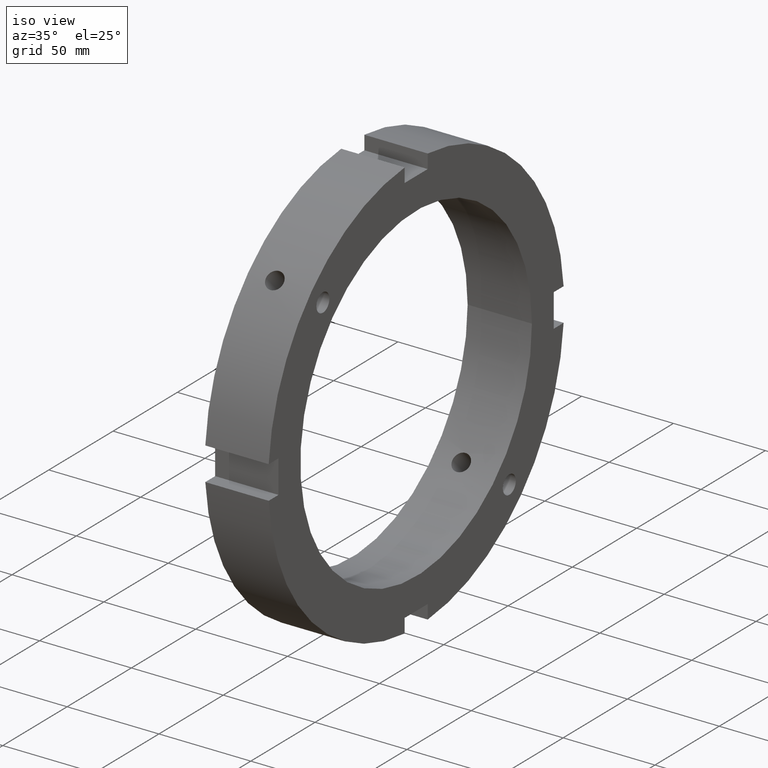
[diagram: clean part render]
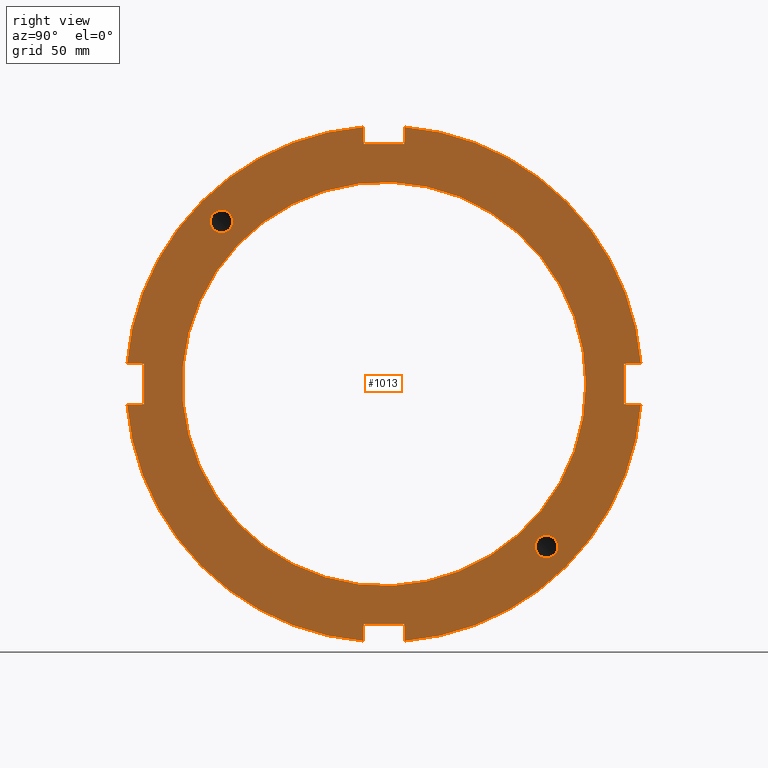
[diagram: tour spotlight — one face highlighted and labeled with its STEP entity id]
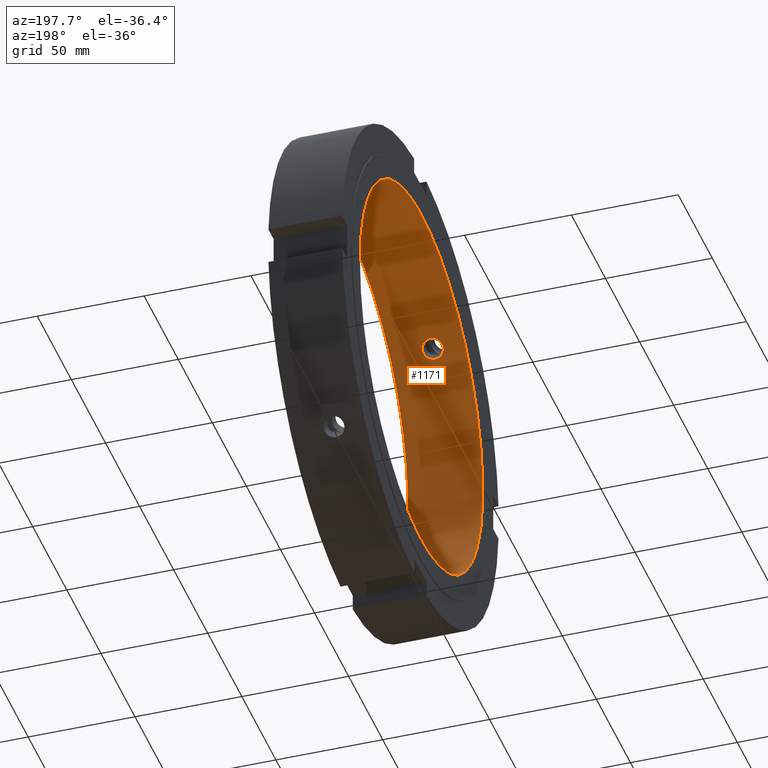
[diagram: tour spotlight — one face highlighted and labeled with its STEP entity id]
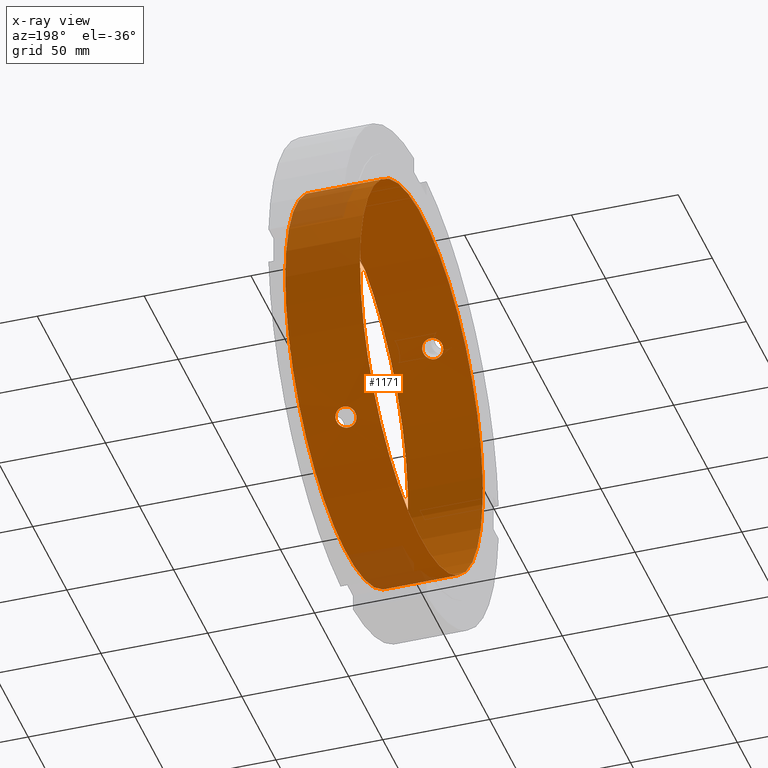
[diagram: x-ray of the same camera — body ghosted, this tour face saturated]
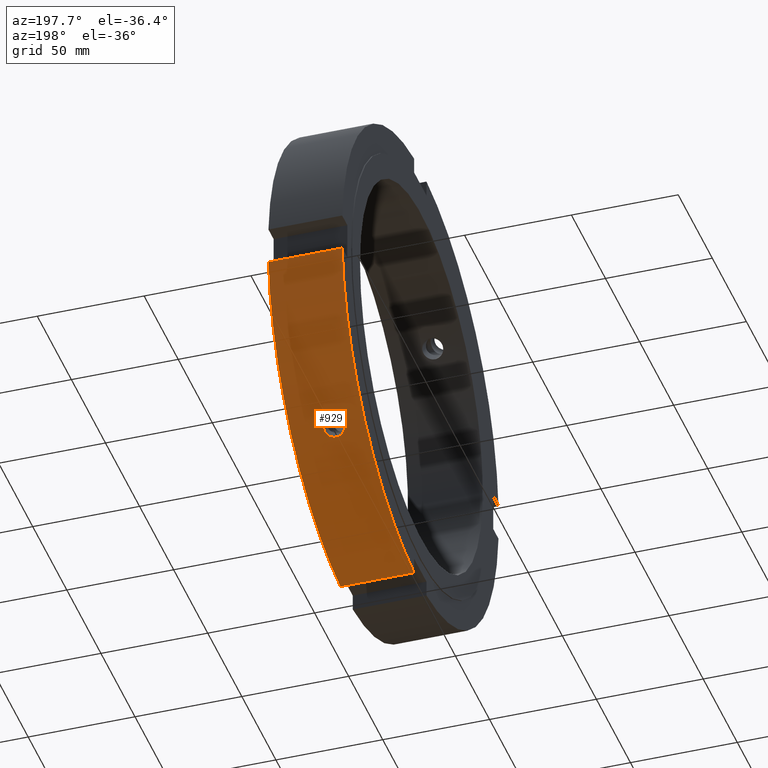
[diagram: tour spotlight — one face highlighted and labeled with its STEP entity id]
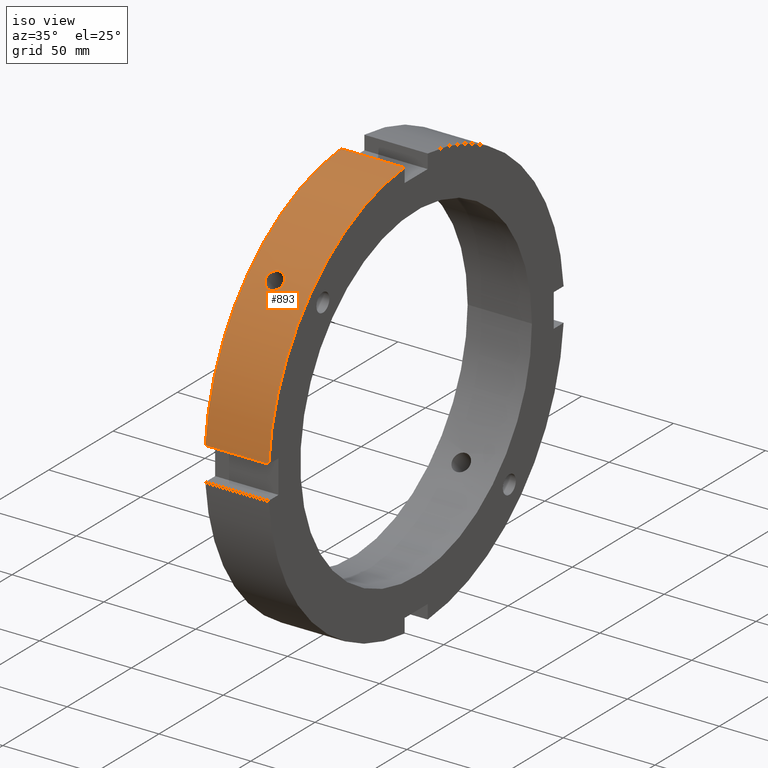
[diagram: tour spotlight — one face highlighted and labeled with its STEP entity id]
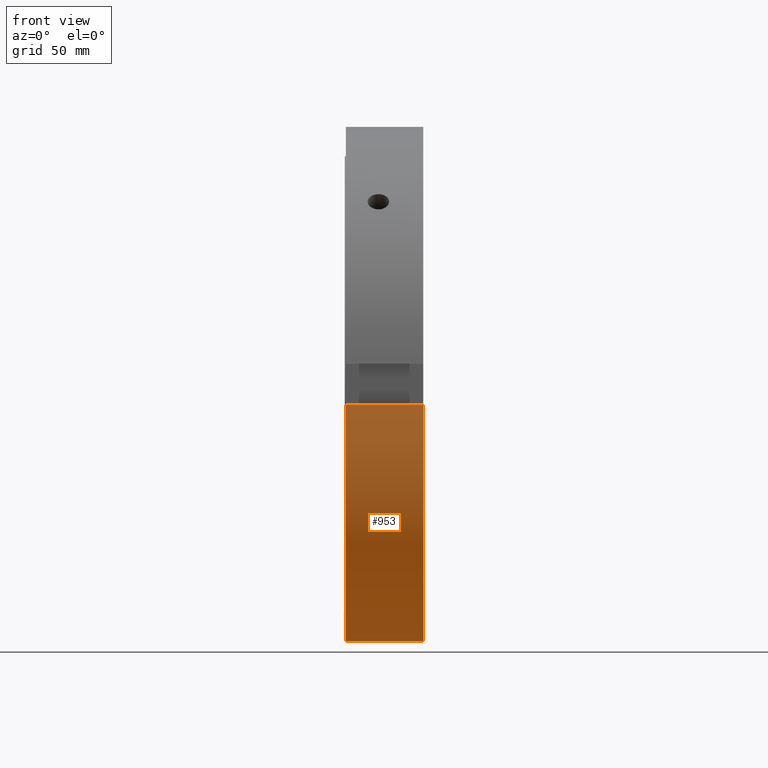
[diagram: tour spotlight — one face highlighted and labeled with its STEP entity id]
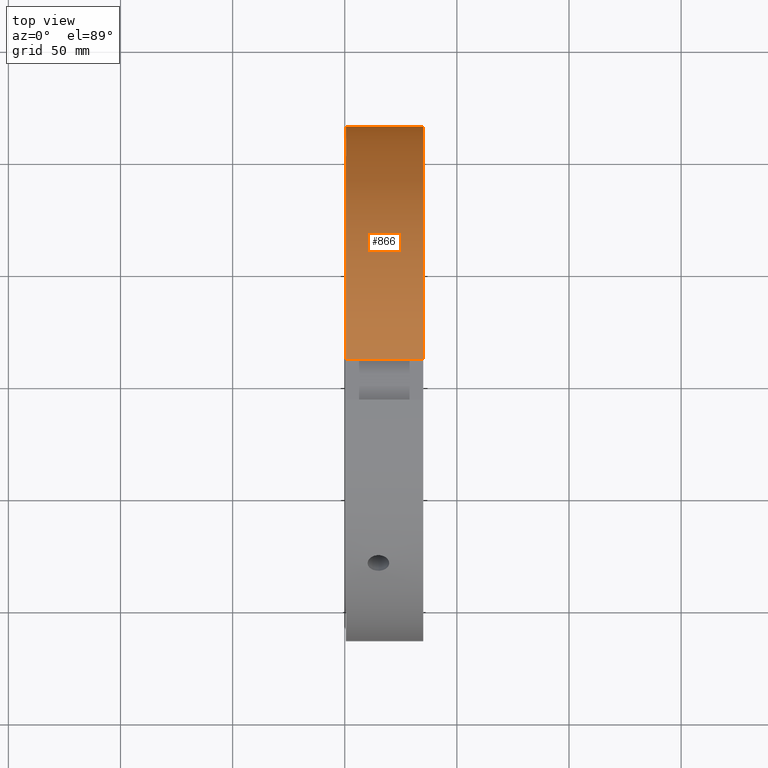
[diagram: tour spotlight — one face highlighted and labeled with its STEP entity id]
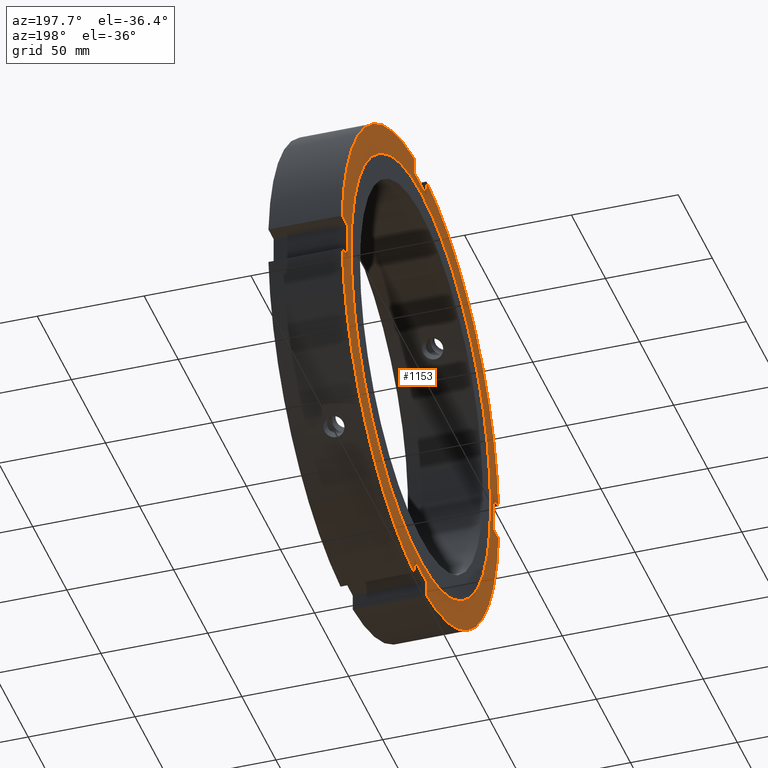
[diagram: tour spotlight — one face highlighted and labeled with its STEP entity id]
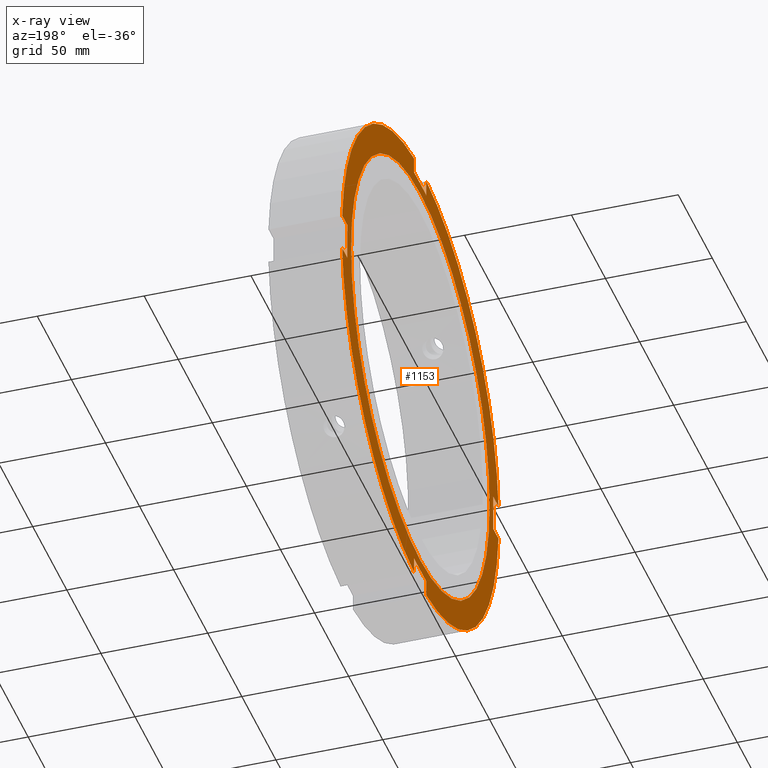
[diagram: x-ray of the same camera — body ghosted, this tour face saturated]
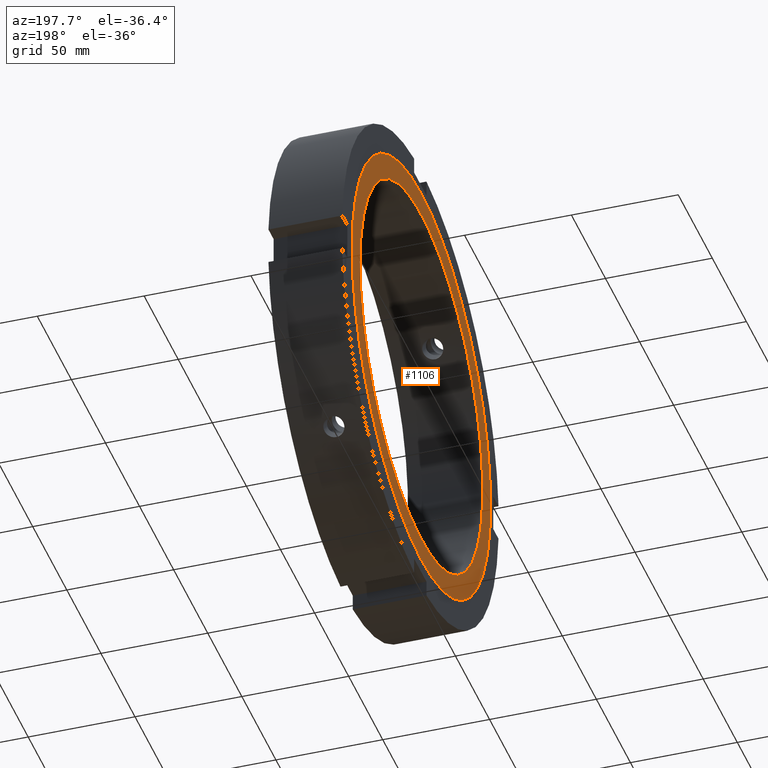
[diagram: tour spotlight — one face highlighted and labeled with its STEP entity id]
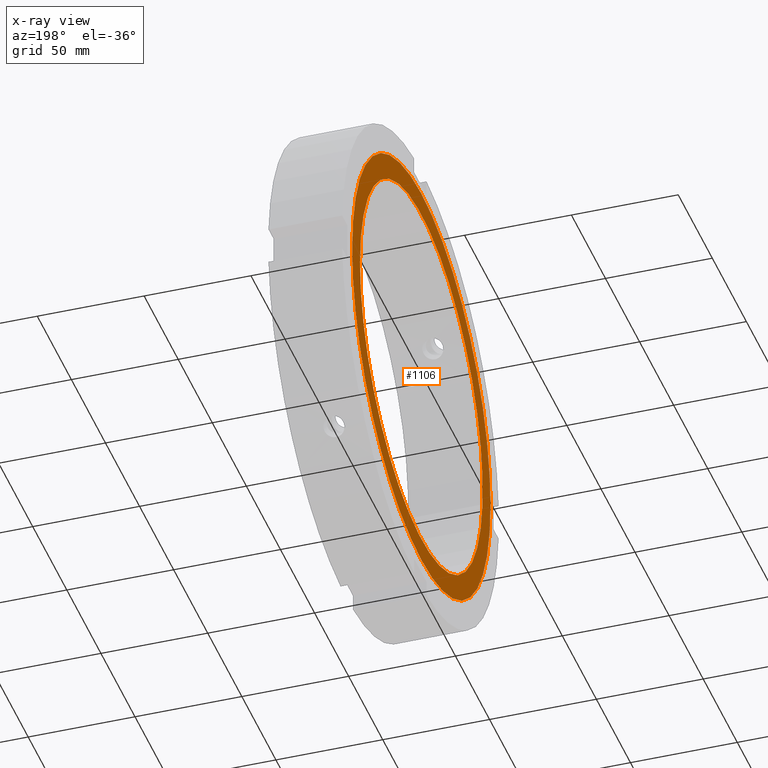
[diagram: x-ray of the same camera — body ghosted, this tour face saturated]
A machine part: a face-by-face anatomy tour. The part has 29 B-rep faces; the first image is the clean iso view, then the 8 largest visible faces are spotlighted one at a time (largest first), each with its STEP entity span.

Face 1 — right view, entity #1013. In plain terms, the highlighted planar face has unit normal (1, 0, 0).
Definition (entity closure, byte-faithful):
#73=CARTESIAN_POINT('',(34.999999999999972,-77.531445071621079,72.478445071621138));
#74=VERTEX_POINT('',#73);
#75=CARTESIAN_POINT('',(34.999999999999972,-72.478445071621081,72.478445071621138));
#76=DIRECTION('',(-1.0,0.0,0.0));
#77=DIRECTION('',(0.0,-1.0,0.0));
#78=AXIS2_PLACEMENT_3D('',#75,#76,#77);
#79=CIRCLE('',#78,5.053);
#80=EDGE_CURVE('',#74,#74,#79,.T.);
#422=CARTESIAN_POINT('',(34.999999999999972,72.478445071621124,-77.531445071621093));
#423=VERTEX_POINT('',#422);
#424=CARTESIAN_POINT('',(34.999999999999972,72.478445071621124,-72.478445071621096));
#425=DIRECTION('',(-1.0,0.0,0.0));
#426=DIRECTION('',(0.0,0.0,-1.0));
#427=AXIS2_PLACEMENT_3D('',#424,#425,#426);
#428=CIRCLE('',#427,5.053);
#429=EDGE_CURVE('',#423,#423,#428,.T.);
#543=CARTESIAN_POINT('',(34.999999999999972,-9.000000000000014,-107.0));
#544=VERTEX_POINT('',#543);
#551=CARTESIAN_POINT('',(34.999999999999972,-9.000000000000014,-114.64728518373209));
#552=VERTEX_POINT('',#551);
#553=CARTESIAN_POINT('',(34.999999999999972,-9.000000000000025,-114.64728518373211));
#554=DIRECTION('',(0.0,0.0,1.0));
#555=VECTOR('',#554,7.647285183732109);
#556=LINE('',#553,#555);
#557=EDGE_CURVE('',#552,#544,#556,.T.);
#583=CARTESIAN_POINT('',(34.999999999999972,8.999999999999972,-114.64728518373209));
#584=VERTEX_POINT('',#583);
#591=CARTESIAN_POINT('',(34.999999999999972,8.999999999999975,-107.0));
#592=VERTEX_POINT('',#591);
#593=CARTESIAN_POINT('',(34.999999999999972,8.99999999999997,-107.0));
#594=DIRECTION('',(0.0,0.0,-1.0));
#595=VECTOR('',#594,7.647285183732109);
#596=LINE('',#593,#595);
#597=EDGE_CURVE('',#592,#584,#596,.T.);
#620=CARTESIAN_POINT('',(34.999999999999972,-9.000000000000014,-106.99999999999999));
#621=DIRECTION('',(0.0,1.0,0.0));
#622=VECTOR('',#621,17.999999999999986);
#623=LINE('',#620,#622);
#624=EDGE_CURVE('',#544,#592,#623,.T.);
#645=CARTESIAN_POINT('',(34.999999999999972,-107.0,9.000000000000007));
#646=VERTEX_POINT('',#645);
#653=CARTESIAN_POINT('',(34.999999999999972,-114.64728518373209,9.000000000000007));
#654=VERTEX_POINT('',#653);
#655=CARTESIAN_POINT('',(34.999999999999972,-114.64728518373211,9.000000000000009));
#656=DIRECTION('',(0.0,1.0,0.0));
#657=VECTOR('',#656,7.647285183732109);
#658=LINE('',#655,#657);
#659=EDGE_CURVE('',#654,#646,#658,.T.);
#685=CARTESIAN_POINT('',(34.999999999999972,-114.64728518373209,-8.999999999999981));
#686=VERTEX_POINT('',#685);
#693=CARTESIAN_POINT('',(34.999999999999972,-107.0,-8.999999999999982));
#694=VERTEX_POINT('',#693);
#695=CARTESIAN_POINT('',(34.999999999999972,-107.0,-8.999999999999981));
#696=DIRECTION('',(0.0,-1.0,0.0));
#697=VECTOR('',#696,7.647285183732095);
#698=LINE('',#695,#697);
#699=EDGE_CURVE('',#694,#686,#698,.T.);
#722=CARTESIAN_POINT('',(34.999999999999972,-107.0,9.000000000000007));
#723=DIRECTION('',(0.0,0.0,-1.0));
#724=VECTOR('',#723,17.999999999999989);
#725=LINE('',#722,#724);
#726=EDGE_CURVE('',#646,#694,#725,.T.);
#747=CARTESIAN_POINT('',(34.999999999999972,9.000000000000002,107.0));
#748=VERTEX_POINT('',#747);
#755=CARTESIAN_POINT('',(34.999999999999972,9.0,114.64728518373209));
#756=VERTEX_POINT('',#755);
#757=CARTESIAN_POINT('',(34.999999999999972,8.999999999999998,114.64728518373211));
#758=DIRECTION('',(0.0,0.0,-1.0));
#759=VECTOR('',#758,7.647285183732109);
#760=LINE('',#757,#759);
#761=EDGE_CURVE('',#756,#748,#760,.T.);
#787=CARTESIAN_POINT('',(34.999999999999972,-8.999999999999988,114.64728518373209));
#788=VERTEX_POINT('',#787);
#795=CARTESIAN_POINT('',(34.999999999999972,-8.999999999999988,107.0));
#796=VERTEX_POINT('',#795);
#797=CARTESIAN_POINT('',(34.999999999999972,-8.999999999999984,107.0));
#798=DIRECTION('',(0.0,0.0,1.0));
#799=VECTOR('',#798,7.647285183732095);
#800=LINE('',#797,#799);
#801=EDGE_CURVE('',#796,#788,#800,.T.);
#824=CARTESIAN_POINT('',(34.999999999999972,9.000000000000007,107.0));
#825=DIRECTION('',(0.0,-1.0,0.0));
#826=VECTOR('',#825,17.999999999999993);
#827=LINE('',#824,#826);
#828=EDGE_CURVE('',#748,#796,#827,.T.);
#840=CARTESIAN_POINT('',(34.999999999999972,114.64728518373209,8.999999999999993));
#841=VERTEX_POINT('',#840);
#842=CARTESIAN_POINT('',(34.999999999999972,0.0,0.0));
#843=DIRECTION('',(1.0,0.0,0.0));
#844=DIRECTION('',(0.0,1.0,0.0));
#845=AXIS2_PLACEMENT_3D('',#842,#843,#844);
#846=CIRCLE('',#845,115.0);
#847=EDGE_CURVE('',#841,#756,#846,.T.);
#873=CARTESIAN_POINT('',(34.999999999999972,0.0,0.0));
#874=DIRECTION('',(1.0,0.0,0.0));
#875=DIRECTION('',(0.0,1.0,0.0));
#876=AXIS2_PLACEMENT_3D('',#873,#874,#875);
#877=CIRCLE('',#876,115.0);
#878=EDGE_CURVE('',#788,#654,#877,.T.);
#909=CARTESIAN_POINT('',(34.999999999999972,114.64728518373209,-8.999999999999993));
#910=VERTEX_POINT('',#909);
#917=CARTESIAN_POINT('',(34.999999999999972,0.0,0.0));
#918=DIRECTION('',(1.0,0.0,0.0));
#919=DIRECTION('',(0.0,1.0,0.0));
#920=AXIS2_PLACEMENT_3D('',#917,#918,#919);
#921=CIRCLE('',#920,115.0);
#922=EDGE_CURVE('',#584,#910,#921,.T.);
#936=CARTESIAN_POINT('',(34.999999999999972,0.0,0.0));
#937=DIRECTION('',(1.0,0.0,0.0));
#938=DIRECTION('',(0.0,1.0,0.0));
#939=AXIS2_PLACEMENT_3D('',#936,#937,#938);
#940=CIRCLE('',#939,115.0);
#941=EDGE_CURVE('',#686,#552,#940,.T.);
#954=CARTESIAN_POINT('',(34.999999999999972,102.5,0.0));
#955=DIRECTION('',(1.0,0.0,0.0));
#956=DIRECTION('',(0.0,0.0,-1.0));
#957=AXIS2_PLACEMENT_3D('',#954,#955,#956);
#958=PLANE('',#957);
#959=ORIENTED_EDGE('',*,*,#557,.T.);
#960=ORIENTED_EDGE('',*,*,#624,.T.);
#961=ORIENTED_EDGE('',*,*,#597,.T.);
#962=ORIENTED_EDGE('',*,*,#922,.T.);
#963=CARTESIAN_POINT('',(34.999999999999972,107.0,-8.999999999999995));
#964=VERTEX_POINT('',#963);
#965=CARTESIAN_POINT('',(34.999999999999972,114.64728518373211,-8.999999999999993));
#966=DIRECTION('',(0.0,-1.0,0.0));
#967=VECTOR('',#966,7.647285183732109);
#968=LINE('',#965,#967);
#969=EDGE_CURVE('',#910,#964,#968,.T.);
#970=ORIENTED_EDGE('',*,*,#969,.T.);
#971=CARTESIAN_POINT('',(34.999999999999972,107.0,8.999999999999995));
#972=VERTEX_POINT('',#971);
#973=CARTESIAN_POINT('',(34.999999999999972,107.0,-8.999999999999996));
#974=DIRECTION('',(0.0,0.0,1.0));
#975=VECTOR('',#974,17.999999999999993);
#976=LINE('',#973,#975);
#977=EDGE_CURVE('',#964,#972,#976,.T.);
#978=ORIENTED_EDGE('',*,*,#977,.T.);
#979=CARTESIAN_POINT('',(34.999999999999972,107.0,8.999999999999995));
#980=DIRECTION('',(0.0,1.0,0.0));
#981=VECTOR('',#980,7.647285183732095);
#982=LINE('',#979,#981);
#983=EDGE_CURVE('',#972,#841,#982,.T.);
#984=ORIENTED_EDGE('',*,*,#983,.T.);
#985=ORIENTED_EDGE('',*,*,#847,.T.);
#986=ORIENTED_EDGE('',*,*,#761,.T.);
#987=ORIENTED_EDGE('',*,*,#828,.T.);
#988=ORIENTED_EDGE('',*,*,#801,.T.);
#989=ORIENTED_EDGE('',*,*,#878,.T.);
#990=ORIENTED_EDGE('',*,*,#659,.T.);
#991=ORIENTED_EDGE('',*,*,#726,.T.);
#992=ORIENTED_EDGE('',*,*,#699,.T.);
#993=ORIENTED_EDGE('',*,*,#941,.T.);
#994=EDGE_LOOP('',(#959,#960,#961,#962,#970,#978,#984,#985,#986,#987,#988,#989,#990,#991,#992,#993));
#995=FACE_OUTER_BOUND('',#994,.T.);
#996=ORIENTED_EDGE('',*,*,#80,.T.);
#997=EDGE_LOOP('',(#996));
#998=FACE_BOUND('',#997,.T.);
#999=ORIENTED_EDGE('',*,*,#429,.T.);
#1000=EDGE_LOOP('',(#999));
#1001=FACE_BOUND('',#1000,.T.);
#1002=CARTESIAN_POINT('',(34.999999999999979,90.0,0.0));
#1003=VERTEX_POINT('',#1002);
#1004=CARTESIAN_POINT('',(34.999999999999979,0.0,0.0));
#1005=DIRECTION('',(1.0,0.0,0.0));
#1006=DIRECTION('',(0.0,1.0,0.0));
#1007=AXIS2_PLACEMENT_3D('',#1004,#1005,#1006);
#1008=CIRCLE('',#1007,90.0);
#1009=EDGE_CURVE('',#1003,#1003,#1008,.T.);
#1010=ORIENTED_EDGE('',*,*,#1009,.F.);
#1011=EDGE_LOOP('',(#1010));
#1012=FACE_BOUND('',#1011,.T.);
#1013=ADVANCED_FACE('',(#995,#998,#1001,#1012),#958,.T.);

Face 2 — auxiliary view, entity #1171. An x-ray twin of the same camera follows (body ghosted, this face saturated) — the face is partly hidden behind the body. In plain terms, the highlighted cylindrical surface (bore or boss wall) has radius 90 mm, axis along (1, 0, 0).
Definition (entity closure, byte-faithful):
#256=CARTESIAN_POINT('',(14.999999999999979,-66.9431487343615,60.154923634970679));
#257=VERTEX_POINT('',#256);
#258=CARTESIAN_POINT('',(14.999999999999975,-66.943148734361515,60.154923634970665));
#259=CARTESIAN_POINT('',(15.602821473845577,-66.943148734361515,60.154923634970665));
#260=CARTESIAN_POINT('',(16.245745736611546,-66.86267421740375,60.244858215268394));
#261=CARTESIAN_POINT('',(17.428332696815357,-66.533356657039533,60.608354182849382));
#262=CARTESIAN_POINT('',(17.968005091347511,-66.284271889600191,60.881664942976258));
#263=CARTESIAN_POINT('',(18.820219891480487,-65.704406931178198,61.507013712957402));
#264=CARTESIAN_POINT('',(19.189609399163533,-65.334906359881217,61.900725236077975));
#265=CARTESIAN_POINT('',(19.679502617617995,-64.515762987883818,62.754012619879155));
#266=CARTESIAN_POINT('',(19.799999999999976,-64.065869342186062,63.213351271392497));
#267=CARTESIAN_POINT('',(19.799999999999976,-63.213351271392497,64.065869342186076));
#268=CARTESIAN_POINT('',(19.679502617617992,-62.754012619879134,64.515762987883832));
#269=CARTESIAN_POINT('',(19.189609399163533,-61.90072523607796,65.334906359881217));
#270=CARTESIAN_POINT('',(18.820219891480477,-61.507013712957431,65.704406931178198));
#271=CARTESIAN_POINT('',(17.968005091347511,-60.881664942976286,66.284271889600191));
#272=CARTESIAN_POINT('',(17.428332696815382,-60.608354182849368,66.533356657039562));
#273=CARTESIAN_POINT('',(16.245745736611571,-60.244858215268366,66.862674217403793));
#274=CARTESIAN_POINT('',(15.602821473845584,-60.154923634970643,66.943148734361543));
#275=CARTESIAN_POINT('',(14.397178526154374,-60.154923634970643,66.943148734361543));
#276=CARTESIAN_POINT('',(13.754254263388386,-60.244858215268366,66.862674217403793));
#277=CARTESIAN_POINT('',(12.571667303184572,-60.608354182849368,66.533356657039562));
#278=CARTESIAN_POINT('',(12.031994908652447,-60.881664942976286,66.284271889600191));
#279=CARTESIAN_POINT('',(11.179780108519477,-61.507013712957431,65.704406931178198));
#280=CARTESIAN_POINT('',(10.810390600836424,-61.90072523607796,65.334906359881217));
#281=CARTESIAN_POINT('',(10.320497382381966,-62.754012619879134,64.515762987883832));
#282=CARTESIAN_POINT('',(10.199999999999978,-63.213351271392497,64.065869342186076));
#283=CARTESIAN_POINT('',(10.199999999999978,-64.065869342186062,63.213351271392504));
#284=CARTESIAN_POINT('',(10.320497382381966,-64.515762987883832,62.754012619879163));
#285=CARTESIAN_POINT('',(10.810390600836428,-65.334906359881217,61.900725236077975));
#286=CARTESIAN_POINT('',(11.179780108519475,-65.704406931178198,61.507013712957445));
#287=CARTESIAN_POINT('',(12.031994908652447,-66.284271889600177,60.8816649429763));
#288=CARTESIAN_POINT('',(12.571667303184588,-66.533356657039519,60.608354182849411));
#289=CARTESIAN_POINT('',(13.7542542633884,-66.86267421740375,60.244858215268408));
#290=CARTESIAN_POINT('',(14.397178526154375,-66.943148734361515,60.154923634970665));
#291=CARTESIAN_POINT('',(14.99999999999998,-66.943148734361515,60.154923634970665));
#292=B_SPLINE_CURVE_WITH_KNOTS('',3,(#258,#259,#260,#261,#262,#263,#264,#265,#266,#267,#268,#269,#270,#271,#272,#273,#274,#275,#276,#277,#278,#279,#280,#281,#282,#283,#284,#285,#286,#287,#288,#289,#290,#291),.UNSPECIFIED.,.T.,.U.,(4,2,2,2,2,2,2,2,2,2,2,2,2,2,2,2,4),(0.0,0.180846442153681,0.361692884307361,0.542539276990025,0.723385669672689,0.904232062355351,1.085078455038013,1.265924897191694,1.446771339345376,1.627617781499057,1.808464223652739,1.989310616335401,2.170157009018063,2.351003401700725,2.531849794383387,2.712696236537068,2.89354267869075),.UNSPECIFIED.);
#293=EDGE_CURVE('',#257,#257,#292,.T.);
#486=CARTESIAN_POINT('',(14.999999999999979,60.154923634970665,-66.943148734361515));
#487=VERTEX_POINT('',#486);
#488=CARTESIAN_POINT('',(14.999999999999975,60.154923634970658,-66.943148734361529));
#489=CARTESIAN_POINT('',(14.39717852615437,60.154923634970658,-66.943148734361529));
#490=CARTESIAN_POINT('',(13.754254263388386,60.244858215268366,-66.862674217403793));
#491=CARTESIAN_POINT('',(12.571667303184572,60.608354182849368,-66.533356657039562));
#492=CARTESIAN_POINT('',(12.031994908652447,60.881664942976286,-66.284271889600191));
#493=CARTESIAN_POINT('',(11.179780108519477,61.507013712957431,-65.704406931178198));
#494=CARTESIAN_POINT('',(10.810390600836421,61.900725236077975,-65.334906359881217));
#495=CARTESIAN_POINT('',(10.320497382381964,62.754012619879155,-64.515762987883832));
#496=CARTESIAN_POINT('',(10.199999999999978,63.213351271392497,-64.065869342186076));
#497=CARTESIAN_POINT('',(10.199999999999978,64.065869342186062,-63.213351271392497));
#498=CARTESIAN_POINT('',(10.320497382381957,64.515762987883818,-62.754012619879155));
#499=CARTESIAN_POINT('',(10.810390600836417,65.334906359881217,-61.900725236077975));
#500=CARTESIAN_POINT('',(11.179780108519475,65.704406931178184,-61.507013712957445));
#501=CARTESIAN_POINT('',(12.031994908652447,66.284271889600177,-60.8816649429763));
#502=CARTESIAN_POINT('',(12.571667303184588,66.533356657039519,-60.608354182849411));
#503=CARTESIAN_POINT('',(13.7542542633884,66.86267421740375,-60.244858215268408));
#504=CARTESIAN_POINT('',(14.397178526154374,66.943148734361529,-60.154923634970658));
#505=CARTESIAN_POINT('',(15.602821473845578,66.943148734361529,-60.154923634970658));
#506=CARTESIAN_POINT('',(16.245745736611546,66.86267421740375,-60.244858215268394));
#507=CARTESIAN_POINT('',(17.428332696815353,66.533356657039548,-60.608354182849382));
#508=CARTESIAN_POINT('',(17.968005091347511,66.284271889600205,-60.881664942976258));
#509=CARTESIAN_POINT('',(18.820219891480491,65.704406931178227,-61.507013712957402));
#510=CARTESIAN_POINT('',(19.189609399163526,65.334906359881245,-61.90072523607796));
#511=CARTESIAN_POINT('',(19.679502617617992,64.515762987883832,-62.754012619879148));
#512=CARTESIAN_POINT('',(19.799999999999976,64.065869342186076,-63.213351271392497));
#513=CARTESIAN_POINT('',(19.799999999999976,63.21335127139249,-64.065869342186076));
#514=CARTESIAN_POINT('',(19.679502617617992,62.754012619879148,-64.515762987883832));
#515=CARTESIAN_POINT('',(19.189609399163533,61.900725236077975,-65.334906359881217));
#516=CARTESIAN_POINT('',(18.820219891480477,61.507013712957431,-65.704406931178198));
#517=CARTESIAN_POINT('',(17.968005091347511,60.881664942976286,-66.284271889600191));
#518=CARTESIAN_POINT('',(17.428332696815382,60.608354182849368,-66.533356657039562));
#519=CARTESIAN_POINT('',(16.245745736611571,60.244858215268366,-66.862674217403793));
#520=CARTESIAN_POINT('',(15.602821473845584,60.154923634970658,-66.943148734361529));
#521=CARTESIAN_POINT('',(14.999999999999979,60.154923634970658,-66.943148734361529));
#522=B_SPLINE_CURVE_WITH_KNOTS('',3,(#488,#489,#490,#491,#492,#493,#494,#495,#496,#497,#498,#499,#500,#501,#502,#503,#504,#505,#506,#507,#508,#509,#510,#511,#512,#513,#514,#515,#516,#517,#518,#519,#520,#521),.UNSPECIFIED.,.T.,.U.,(4,2,2,2,2,2,2,2,2,2,2,2,2,2,2,2,4),(0.0,0.180846442153681,0.361692884307363,0.542539276990025,0.723385669672687,0.904232062355349,1.085078455038011,1.265924897191692,1.446771339345374,1.627617781499054,1.808464223652734,1.989310616335399,2.170157009018063,2.351003401700726,2.531849794383387,2.712696236537069,2.89354267869075),.UNSPECIFIED.);
#523=EDGE_CURVE('',#487,#487,#522,.T.);
#1002=CARTESIAN_POINT('',(34.999999999999979,90.0,0.0));
#1003=VERTEX_POINT('',#1002);
#1004=CARTESIAN_POINT('',(34.999999999999979,0.0,0.0));
#1005=DIRECTION('',(1.0,0.0,0.0));
#1006=DIRECTION('',(0.0,1.0,0.0));
#1007=AXIS2_PLACEMENT_3D('',#1004,#1005,#1006);
#1008=CIRCLE('',#1007,90.0);
#1009=EDGE_CURVE('',#1003,#1003,#1008,.T.);
#1095=CARTESIAN_POINT('',(-2.666090E-014,90.0,0.0));
#1096=VERTEX_POINT('',#1095);
#1097=CARTESIAN_POINT('',(-2.666270E-014,0.0,0.0));
#1098=DIRECTION('',(1.0,0.0,0.0));
#1099=DIRECTION('',(0.0,1.0,0.0));
#1100=AXIS2_PLACEMENT_3D('',#1097,#1098,#1099);
#1101=CIRCLE('',#1100,90.0);
#1102=EDGE_CURVE('',#1096,#1096,#1101,.T.);
#1154=CARTESIAN_POINT('',(17.499999999999975,0.0,0.0));
#1155=DIRECTION('',(1.0,0.0,0.0));
#1156=DIRECTION('',(0.0,1.0,0.0));
#1157=AXIS2_PLACEMENT_3D('',#1154,#1155,#1156);
#1158=CYLINDRICAL_SURFACE('',#1157,90.0);
#1159=ORIENTED_EDGE('',*,*,#1102,.F.);
#1160=EDGE_LOOP('',(#1159));
#1161=FACE_OUTER_BOUND('',#1160,.T.);
#1162=ORIENTED_EDGE('',*,*,#293,.T.);
#1163=EDGE_LOOP('',(#1162));
#1164=FACE_BOUND('',#1163,.T.);
#1165=ORIENTED_EDGE('',*,*,#523,.T.);
#1166=EDGE_LOOP('',(#1165));
#1167=FACE_BOUND('',#1166,.T.);
#1168=ORIENTED_EDGE('',*,*,#1009,.T.);
#1169=EDGE_LOOP('',(#1168));
#1170=FACE_BOUND('',#1169,.T.);
#1171=ADVANCED_FACE('',(#1161,#1164,#1167,#1170),#1158,.F.);

Face 3 — auxiliary view, entity #929. In plain terms, the highlighted cylindrical surface (partial cylindrical patch) has radius 115 mm, axis along (1, 0, 0).
Definition (entity closure, byte-faithful):
#439=CARTESIAN_POINT('',(14.999999999999979,77.852302755842814,-84.640527855233671));
#440=VERTEX_POINT('',#439);
#441=CARTESIAN_POINT('',(14.999999999999973,77.852302755842814,-84.640527855233671));
#442=CARTESIAN_POINT('',(15.602773842872399,77.852302755842814,-84.640527855233671));
#443=CARTESIAN_POINT('',(16.245677617210287,77.941193201887359,-84.559035514128894));
#444=CARTESIAN_POINT('',(17.42827770535601,78.300957772508937,-84.226006059151416));
#445=CARTESIAN_POINT('',(17.967979947294932,78.571636962940602,-83.974279468624729));
#446=CARTESIAN_POINT('',(18.820245108412415,79.192073592830837,-83.389431148924558));
#447=CARTESIAN_POINT('',(19.189641810390111,79.583173419668157,-83.017276716778966));
#448=CARTESIAN_POINT('',(19.679521194166309,80.432757326157187,-82.194411451907285));
#449=CARTESIAN_POINT('',(19.799999999999972,80.891054408328927,-81.743505264576953));
#450=CARTESIAN_POINT('',(19.799999999999983,81.743505264576896,-80.891054408328969));
#451=CARTESIAN_POINT('',(19.679521194166323,82.194411451907229,-80.43275732615723));
#452=CARTESIAN_POINT('',(19.18964181039015,83.017276716778895,-79.583173419668213));
#453=CARTESIAN_POINT('',(18.820245108412415,83.389431148924444,-79.192073592830894));
#454=CARTESIAN_POINT('',(17.967979947294936,83.974279468624644,-78.571636962940644));
#455=CARTESIAN_POINT('',(17.428277705356027,84.226006059151388,-78.300957772508951));
#456=CARTESIAN_POINT('',(16.245677617210291,84.55903551412888,-77.941193201887373));
#457=CARTESIAN_POINT('',(15.602773842872409,84.640527855233657,-77.8523027558428));
#458=CARTESIAN_POINT('',(14.397226157127548,84.640527855233657,-77.8523027558428));
#459=CARTESIAN_POINT('',(13.754322382789663,84.55903551412888,-77.941193201887373));
#460=CARTESIAN_POINT('',(12.57172229464393,84.226006059151388,-78.300957772508951));
#461=CARTESIAN_POINT('',(12.032020052705022,83.974279468624644,-78.571636962940644));
#462=CARTESIAN_POINT('',(11.179754891587542,83.389431148924444,-79.192073592830894));
#463=CARTESIAN_POINT('',(10.810358189609808,83.017276716778923,-79.583173419668213));
#464=CARTESIAN_POINT('',(10.320478805833634,82.194411451907229,-80.43275732615723));
#465=CARTESIAN_POINT('',(10.199999999999974,81.743505264576896,-80.891054408328969));
#466=CARTESIAN_POINT('',(10.199999999999982,80.891054408328927,-81.743505264576953));
#467=CARTESIAN_POINT('',(10.320478805833647,80.432757326157187,-82.194411451907285));
#468=CARTESIAN_POINT('',(10.810358189609845,79.583173419668157,-83.017276716778966));
#469=CARTESIAN_POINT('',(11.179754891587539,79.192073592830837,-83.389431148924558));
#470=CARTESIAN_POINT('',(12.032020052705024,78.571636962940602,-83.974279468624729));
#471=CARTESIAN_POINT('',(12.571722294643948,78.300957772508937,-84.226006059151416));
#472=CARTESIAN_POINT('',(13.754322382789667,77.941193201887359,-84.559035514128894));
#473=CARTESIAN_POINT('',(14.397226157127555,77.852302755842814,-84.640527855233671));
#474=CARTESIAN_POINT('',(14.99999999999998,77.852302755842814,-84.640527855233671));
#475=B_SPLINE_CURVE_WITH_KNOTS('',3,(#441,#442,#443,#444,#445,#446,#447,#448,#449,#450,#451,#452,#453,#454,#455,#456,#457,#458,#459,#460,#461,#462,#463,#464,#465,#466,#467,#468,#469,#470,#471,#472,#473,#474),.UNSPECIFIED.,.T.,.U.,(4,2,2,2,2,2,2,2,2,2,2,2,2,2,2,2,4),(0.0,0.180832152861728,0.361664305723455,0.542496440047825,0.723328574372194,0.904160708696563,1.084992843020931,1.26582499588266,1.44665714874439,1.627489301606119,1.808321454467849,1.989153588792217,2.169985723116585,2.350817857440955,2.531649991765324,2.712482144627052,2.89331429748878),.UNSPECIFIED.);
#476=EDGE_CURVE('',#440,#440,#475,.T.);
#573=CARTESIAN_POINT('',(0.499999999999967,8.999999999999972,-114.64728518373209));
#574=VERTEX_POINT('',#573);
#583=CARTESIAN_POINT('',(34.999999999999972,8.999999999999972,-114.64728518373209));
#584=VERTEX_POINT('',#583);
#585=CARTESIAN_POINT('',(34.999999999999972,8.999999999999972,-114.64728518373209));
#586=DIRECTION('',(-1.0,0.0,0.0));
#587=VECTOR('',#586,34.5);
#588=LINE('',#585,#587);
#589=EDGE_CURVE('',#584,#574,#588,.T.);
#894=CARTESIAN_POINT('',(17.749999999999972,0.0,0.0));
#895=DIRECTION('',(1.0,0.0,0.0));
#896=DIRECTION('',(0.0,1.0,0.0));
#897=AXIS2_PLACEMENT_3D('',#894,#895,#896);
#898=CYLINDRICAL_SURFACE('',#897,115.0);
#899=ORIENTED_EDGE('',*,*,#589,.T.);
#900=CARTESIAN_POINT('',(0.499999999999967,114.64728518373209,-8.999999999999993));
#901=VERTEX_POINT('',#900);
#902=CARTESIAN_POINT('',(0.499999999999967,0.0,0.0));
#903=DIRECTION('',(1.0,0.0,0.0));
#904=DIRECTION('',(0.0,1.0,0.0));
#905=AXIS2_PLACEMENT_3D('',#902,#903,#904);
#906=CIRCLE('',#905,115.0);
#907=EDGE_CURVE('',#574,#901,#906,.T.);
#908=ORIENTED_EDGE('',*,*,#907,.T.);
#909=CARTESIAN_POINT('',(34.999999999999972,114.64728518373209,-8.999999999999993));
#910=VERTEX_POINT('',#909);
#911=CARTESIAN_POINT('',(0.499999999999968,114.64728518373209,-8.999999999999993));
#912=DIRECTION('',(1.0,0.0,0.0));
#913=VECTOR('',#912,34.5);
#914=LINE('',#911,#913);
#915=EDGE_CURVE('',#901,#910,#914,.T.);
#916=ORIENTED_EDGE('',*,*,#915,.T.);
#917=CARTESIAN_POINT('',(34.999999999999972,0.0,0.0));
#918=DIRECTION('',(1.0,0.0,0.0));
#919=DIRECTION('',(0.0,1.0,0.0));
#920=AXIS2_PLACEMENT_3D('',#917,#918,#919);
#921=CIRCLE('',#920,115.0);
#922=EDGE_CURVE('',#584,#910,#921,.T.);
#923=ORIENTED_EDGE('',*,*,#922,.F.);
#924=EDGE_LOOP('',(#899,#908,#916,#923));
#925=FACE_OUTER_BOUND('',#924,.T.);
#926=ORIENTED_EDGE('',*,*,#476,.T.);
#927=EDGE_LOOP('',(#926));
#928=FACE_BOUND('',#927,.T.);
#929=ADVANCED_FACE('',(#925,#928),#898,.T.);

Face 4 — iso view, entity #893. In plain terms, the highlighted cylindrical surface (partial cylindrical patch) has radius 115 mm, axis along (1, 0, 0).
Definition (entity closure, byte-faithful):
#209=CARTESIAN_POINT('',(14.999999999999979,-84.640527855233657,77.852302755842828));
#210=VERTEX_POINT('',#209);
#211=CARTESIAN_POINT('',(14.999999999999979,-84.640527855233657,77.852302755842828));
#212=CARTESIAN_POINT('',(14.397226157127548,-84.640527855233657,77.852302755842828));
#213=CARTESIAN_POINT('',(13.754322382789663,-84.55903551412888,77.941193201887373));
#214=CARTESIAN_POINT('',(12.57172229464393,-84.226006059151388,78.300957772508951));
#215=CARTESIAN_POINT('',(12.032020052705022,-83.974279468624644,78.571636962940644));
#216=CARTESIAN_POINT('',(11.179754891587542,-83.389431148924444,79.192073592830894));
#217=CARTESIAN_POINT('',(10.810358189609808,-83.017276716778923,79.583173419668213));
#218=CARTESIAN_POINT('',(10.320478805833634,-82.194411451907229,80.43275732615723));
#219=CARTESIAN_POINT('',(10.199999999999974,-81.743505264576896,80.891054408328969));
#220=CARTESIAN_POINT('',(10.199999999999982,-80.891054408328927,81.743505264576953));
#221=CARTESIAN_POINT('',(10.320478805833647,-80.432757326157187,82.194411451907285));
#222=CARTESIAN_POINT('',(10.810358189609845,-79.583173419668157,83.017276716778966));
#223=CARTESIAN_POINT('',(11.179754891587539,-79.192073592830837,83.389431148924558));
#224=CARTESIAN_POINT('',(12.032020052705024,-78.571636962940602,83.974279468624729));
#225=CARTESIAN_POINT('',(12.571722294643948,-78.300957772508937,84.226006059151416));
#226=CARTESIAN_POINT('',(13.754322382789667,-77.941193201887359,84.559035514128894));
#227=CARTESIAN_POINT('',(14.397226157127552,-77.8523027558428,84.640527855233699));
#228=CARTESIAN_POINT('',(15.602773842872404,-77.8523027558428,84.640527855233699));
#229=CARTESIAN_POINT('',(16.245677617210287,-77.941193201887359,84.559035514128894));
#230=CARTESIAN_POINT('',(17.42827770535601,-78.300957772508937,84.226006059151416));
#231=CARTESIAN_POINT('',(17.967979947294936,-78.571636962940602,83.974279468624729));
#232=CARTESIAN_POINT('',(18.820245108412422,-79.192073592830837,83.389431148924558));
#233=CARTESIAN_POINT('',(19.189641810390111,-79.583173419668157,83.017276716778966));
#234=CARTESIAN_POINT('',(19.679521194166309,-80.432757326157173,82.194411451907285));
#235=CARTESIAN_POINT('',(19.799999999999972,-80.891054408328927,81.743505264576953));
#236=CARTESIAN_POINT('',(19.799999999999983,-81.743505264576896,80.891054408328969));
#237=CARTESIAN_POINT('',(19.679521194166327,-82.194411451907229,80.43275732615723));
#238=CARTESIAN_POINT('',(19.18964181039015,-83.017276716778923,79.583173419668213));
#239=CARTESIAN_POINT('',(18.820245108412415,-83.389431148924444,79.192073592830894));
#240=CARTESIAN_POINT('',(17.967979947294936,-83.974279468624644,78.571636962940644));
#241=CARTESIAN_POINT('',(17.428277705356027,-84.226006059151388,78.300957772508951));
#242=CARTESIAN_POINT('',(16.245677617210291,-84.55903551412888,77.941193201887373));
#243=CARTESIAN_POINT('',(15.602773842872409,-84.640527855233657,77.852302755842828));
#244=CARTESIAN_POINT('',(14.999999999999979,-84.640527855233657,77.852302755842828));
#245=B_SPLINE_CURVE_WITH_KNOTS('',3,(#211,#212,#213,#214,#215,#216,#217,#218,#219,#220,#221,#222,#223,#224,#225,#226,#227,#228,#229,#230,#231,#232,#233,#234,#235,#236,#237,#238,#239,#240,#241,#242,#243,#244),.UNSPECIFIED.,.T.,.U.,(4,2,2,2,2,2,2,2,2,2,2,2,2,2,2,2,4),(0.0,0.180832152861729,0.361664305723459,0.542496440047827,0.723328574372196,0.904160708696565,1.084992843020935,1.265824995882662,1.44665714874439,1.627489301606118,1.808321454467845,1.989153588792215,2.169985723116584,2.350817857440952,2.531649991765321,2.71248214462705,2.89331429748878),.UNSPECIFIED.);
#246=EDGE_CURVE('',#210,#210,#245,.T.);
#637=CARTESIAN_POINT('',(0.499999999999967,-114.64728518373209,9.000000000000007));
#638=VERTEX_POINT('',#637);
#653=CARTESIAN_POINT('',(34.999999999999972,-114.64728518373209,9.000000000000007));
#654=VERTEX_POINT('',#653);
#661=CARTESIAN_POINT('',(0.499999999999968,-114.64728518373209,9.000000000000007));
#662=DIRECTION('',(1.0,0.0,0.0));
#663=VECTOR('',#662,34.5);
#664=LINE('',#661,#663);
#665=EDGE_CURVE('',#638,#654,#664,.T.);
#777=CARTESIAN_POINT('',(0.499999999999967,-8.999999999999988,114.64728518373209));
#778=VERTEX_POINT('',#777);
#787=CARTESIAN_POINT('',(34.999999999999972,-8.999999999999988,114.64728518373209));
#788=VERTEX_POINT('',#787);
#789=CARTESIAN_POINT('',(34.999999999999972,-8.999999999999988,114.64728518373209));
#790=DIRECTION('',(-1.0,0.0,0.0));
#791=VECTOR('',#790,34.5);
#792=LINE('',#789,#791);
#793=EDGE_CURVE('',#788,#778,#792,.T.);
#867=CARTESIAN_POINT('',(17.749999999999972,0.0,0.0));
#868=DIRECTION('',(1.0,0.0,0.0));
#869=DIRECTION('',(0.0,1.0,0.0));
#870=AXIS2_PLACEMENT_3D('',#867,#868,#869);
#871=CYLINDRICAL_SURFACE('',#870,115.0);
#872=ORIENTED_EDGE('',*,*,#665,.T.);
#873=CARTESIAN_POINT('',(34.999999999999972,0.0,0.0));
#874=DIRECTION('',(1.0,0.0,0.0));
#875=DIRECTION('',(0.0,1.0,0.0));
#876=AXIS2_PLACEMENT_3D('',#873,#874,#875);
#877=CIRCLE('',#876,115.0);
#878=EDGE_CURVE('',#788,#654,#877,.T.);
#879=ORIENTED_EDGE('',*,*,#878,.F.);
#880=ORIENTED_EDGE('',*,*,#793,.T.);
#881=CARTESIAN_POINT('',(0.499999999999967,0.0,0.0));
#882=DIRECTION('',(1.0,0.0,0.0));
#883=DIRECTION('',(0.0,1.0,0.0));
#884=AXIS2_PLACEMENT_3D('',#881,#882,#883);
#885=CIRCLE('',#884,115.0);
#886=EDGE_CURVE('',#778,#638,#885,.T.);
#887=ORIENTED_EDGE('',*,*,#886,.T.);
#888=EDGE_LOOP('',(#872,#879,#880,#887));
#889=FACE_OUTER_BOUND('',#888,.T.);
#890=ORIENTED_EDGE('',*,*,#246,.T.);
#891=EDGE_LOOP('',(#890));
#892=FACE_BOUND('',#891,.T.);
#893=ADVANCED_FACE('',(#889,#892),#871,.T.);

Face 5 — front view, entity #953. In plain terms, the highlighted cylindrical surface (partial cylindrical patch) has radius 115 mm, axis along (1, 0, 0).
Definition (entity closure, byte-faithful):
#535=CARTESIAN_POINT('',(0.499999999999967,-9.000000000000014,-114.64728518373209));
#536=VERTEX_POINT('',#535);
#551=CARTESIAN_POINT('',(34.999999999999972,-9.000000000000014,-114.64728518373209));
#552=VERTEX_POINT('',#551);
#559=CARTESIAN_POINT('',(0.499999999999968,-9.000000000000016,-114.64728518373209));
#560=DIRECTION('',(1.0,0.0,0.0));
#561=VECTOR('',#560,34.5);
#562=LINE('',#559,#561);
#563=EDGE_CURVE('',#536,#552,#562,.T.);
#675=CARTESIAN_POINT('',(0.499999999999967,-114.64728518373209,-8.999999999999981));
#676=VERTEX_POINT('',#675);
#685=CARTESIAN_POINT('',(34.999999999999972,-114.64728518373209,-8.999999999999981));
#686=VERTEX_POINT('',#685);
#687=CARTESIAN_POINT('',(34.999999999999972,-114.64728518373209,-8.999999999999981));
#688=DIRECTION('',(-1.0,0.0,0.0));
#689=VECTOR('',#688,34.5);
#690=LINE('',#687,#689);
#691=EDGE_CURVE('',#686,#676,#690,.T.);
#930=CARTESIAN_POINT('',(17.749999999999972,0.0,0.0));
#931=DIRECTION('',(1.0,0.0,0.0));
#932=DIRECTION('',(0.0,1.0,0.0));
#933=AXIS2_PLACEMENT_3D('',#930,#931,#932);
#934=CYLINDRICAL_SURFACE('',#933,115.0);
#935=ORIENTED_EDGE('',*,*,#563,.T.);
#936=CARTESIAN_POINT('',(34.999999999999972,0.0,0.0));
#937=DIRECTION('',(1.0,0.0,0.0));
#938=DIRECTION('',(0.0,1.0,0.0));
#939=AXIS2_PLACEMENT_3D('',#936,#937,#938);
#940=CIRCLE('',#939,115.0);
#941=EDGE_CURVE('',#686,#552,#940,.T.);
#942=ORIENTED_EDGE('',*,*,#941,.F.);
#943=ORIENTED_EDGE('',*,*,#691,.T.);
#944=CARTESIAN_POINT('',(0.499999999999967,0.0,0.0));
#945=DIRECTION('',(1.0,0.0,0.0));
#946=DIRECTION('',(0.0,1.0,0.0));
#947=AXIS2_PLACEMENT_3D('',#944,#945,#946);
#948=CIRCLE('',#947,115.0);
#949=EDGE_CURVE('',#676,#536,#948,.T.);
#950=ORIENTED_EDGE('',*,*,#949,.T.);
#951=EDGE_LOOP('',(#935,#942,#943,#950));
#952=FACE_OUTER_BOUND('',#951,.T.);
#953=ADVANCED_FACE('',(#952),#934,.T.);

Face 6 — top view, entity #866. In plain terms, the highlighted cylindrical surface (partial cylindrical patch) has radius 115 mm, axis along (1, 0, 0).
Definition (entity closure, byte-faithful):
#739=CARTESIAN_POINT('',(0.499999999999967,9.0,114.64728518373209));
#740=VERTEX_POINT('',#739);
#755=CARTESIAN_POINT('',(34.999999999999972,9.0,114.64728518373209));
#756=VERTEX_POINT('',#755);
#763=CARTESIAN_POINT('',(0.499999999999968,9.000000000000002,114.64728518373209));
#764=DIRECTION('',(1.0,0.0,0.0));
#765=VECTOR('',#764,34.5);
#766=LINE('',#763,#765);
#767=EDGE_CURVE('',#740,#756,#766,.T.);
#834=CARTESIAN_POINT('',(17.749999999999972,0.0,0.0));
#835=DIRECTION('',(1.0,0.0,0.0));
#836=DIRECTION('',(0.0,1.0,0.0));
#837=AXIS2_PLACEMENT_3D('',#834,#835,#836);
#838=CYLINDRICAL_SURFACE('',#837,115.0);
#839=ORIENTED_EDGE('',*,*,#767,.T.);
#840=CARTESIAN_POINT('',(34.999999999999972,114.64728518373209,8.999999999999993));
#841=VERTEX_POINT('',#840);
#842=CARTESIAN_POINT('',(34.999999999999972,0.0,0.0));
#843=DIRECTION('',(1.0,0.0,0.0));
#844=DIRECTION('',(0.0,1.0,0.0));
#845=AXIS2_PLACEMENT_3D('',#842,#843,#844);
#846=CIRCLE('',#845,115.0);
#847=EDGE_CURVE('',#841,#756,#846,.T.);
#848=ORIENTED_EDGE('',*,*,#847,.F.);
#849=CARTESIAN_POINT('',(0.499999999999967,114.64728518373209,8.999999999999993));
#850=VERTEX_POINT('',#849);
#851=CARTESIAN_POINT('',(34.999999999999972,114.64728518373209,8.999999999999993));
#852=DIRECTION('',(-1.0,0.0,0.0));
#853=VECTOR('',#852,34.5);
#854=LINE('',#851,#853);
#855=EDGE_CURVE('',#841,#850,#854,.T.);
#856=ORIENTED_EDGE('',*,*,#855,.T.);
#857=CARTESIAN_POINT('',(0.499999999999967,0.0,0.0));
#858=DIRECTION('',(1.0,0.0,0.0));
#859=DIRECTION('',(0.0,1.0,0.0));
#860=AXIS2_PLACEMENT_3D('',#857,#858,#859);
#861=CIRCLE('',#860,115.0);
#862=EDGE_CURVE('',#850,#740,#861,.T.);
#863=ORIENTED_EDGE('',*,*,#862,.T.);
#864=EDGE_LOOP('',(#839,#848,#856,#863));
#865=FACE_OUTER_BOUND('',#864,.T.);
#866=ADVANCED_FACE('',(#865),#838,.T.);

Face 7 — auxiliary view, entity #1153. An x-ray twin of the same camera follows (body ghosted, this face saturated) — the face is partly hidden behind the body. In plain terms, the highlighted planar face has unit normal (-1, 0, 0).
Definition (entity closure, byte-faithful):
#533=CARTESIAN_POINT('',(0.499999999999972,-9.000000000000014,-107.0));
#534=VERTEX_POINT('',#533);
#535=CARTESIAN_POINT('',(0.499999999999967,-9.000000000000014,-114.64728518373209));
#536=VERTEX_POINT('',#535);
#537=CARTESIAN_POINT('',(0.499999999999969,-9.000000000000023,-107.0));
#538=DIRECTION('',(0.0,0.0,-1.0));
#539=VECTOR('',#538,7.647285183732109);
#540=LINE('',#537,#539);
#541=EDGE_CURVE('',#534,#536,#540,.T.);
#573=CARTESIAN_POINT('',(0.499999999999967,8.999999999999972,-114.64728518373209));
#574=VERTEX_POINT('',#573);
#575=CARTESIAN_POINT('',(0.499999999999972,8.999999999999975,-107.0));
#576=VERTEX_POINT('',#575);
#577=CARTESIAN_POINT('',(0.499999999999969,8.999999999999968,-114.64728518373211));
#578=DIRECTION('',(0.0,0.0,1.0));
#579=VECTOR('',#578,7.647285183732109);
#580=LINE('',#577,#579);
#581=EDGE_CURVE('',#574,#576,#580,.T.);
#613=CARTESIAN_POINT('',(0.499999999999969,8.999999999999979,-106.99999999999999));
#614=DIRECTION('',(0.0,-1.0,0.0));
#615=VECTOR('',#614,17.999999999999993);
#616=LINE('',#613,#615);
#617=EDGE_CURVE('',#576,#534,#616,.T.);
#635=CARTESIAN_POINT('',(0.499999999999972,-107.0,9.000000000000007));
#636=VERTEX_POINT('',#635);
#637=CARTESIAN_POINT('',(0.499999999999967,-114.64728518373209,9.000000000000007));
#638=VERTEX_POINT('',#637);
#639=CARTESIAN_POINT('',(0.499999999999969,-107.0,9.000000000000009));
#640=DIRECTION('',(0.0,-1.0,0.0));
#641=VECTOR('',#640,7.647285183732095);
#642=LINE('',#639,#641);
#643=EDGE_CURVE('',#636,#638,#642,.T.);
#675=CARTESIAN_POINT('',(0.499999999999967,-114.64728518373209,-8.999999999999981));
#676=VERTEX_POINT('',#675);
#677=CARTESIAN_POINT('',(0.499999999999972,-107.0,-8.999999999999982));
#678=VERTEX_POINT('',#677);
#679=CARTESIAN_POINT('',(0.499999999999969,-114.64728518373209,-8.999999999999982));
#680=DIRECTION('',(0.0,1.0,0.0));
#681=VECTOR('',#680,7.647285183732109);
#682=LINE('',#679,#681);
#683=EDGE_CURVE('',#676,#678,#682,.T.);
#715=CARTESIAN_POINT('',(0.499999999999969,-107.0,-8.999999999999981));
#716=DIRECTION('',(0.0,0.0,1.0));
#717=VECTOR('',#716,17.999999999999989);
#718=LINE('',#715,#717);
#719=EDGE_CURVE('',#678,#636,#718,.T.);
#737=CARTESIAN_POINT('',(0.499999999999972,9.000000000000002,107.0));
#738=VERTEX_POINT('',#737);
#739=CARTESIAN_POINT('',(0.499999999999967,9.0,114.64728518373209));
#740=VERTEX_POINT('',#739);
#741=CARTESIAN_POINT('',(0.499999999999969,9.0,107.0));
#742=DIRECTION('',(0.0,0.0,1.0));
#743=VECTOR('',#742,7.647285183732109);
#744=LINE('',#741,#743);
#745=EDGE_CURVE('',#738,#740,#744,.T.);
#777=CARTESIAN_POINT('',(0.499999999999967,-8.999999999999988,114.64728518373209));
#778=VERTEX_POINT('',#777);
#779=CARTESIAN_POINT('',(0.499999999999972,-8.999999999999988,107.0));
#780=VERTEX_POINT('',#779);
#781=CARTESIAN_POINT('',(0.499999999999969,-8.999999999999984,114.64728518373209));
#782=DIRECTION('',(0.0,0.0,-1.0));
#783=VECTOR('',#782,7.647285183732095);
#784=LINE('',#781,#783);
#785=EDGE_CURVE('',#778,#780,#784,.T.);
#817=CARTESIAN_POINT('',(0.499999999999969,-8.999999999999986,107.0));
#818=DIRECTION('',(0.0,1.0,0.0));
#819=VECTOR('',#818,17.999999999999986);
#820=LINE('',#817,#819);
#821=EDGE_CURVE('',#780,#738,#820,.T.);
#849=CARTESIAN_POINT('',(0.499999999999967,114.64728518373209,8.999999999999993));
#850=VERTEX_POINT('',#849);
#857=CARTESIAN_POINT('',(0.499999999999967,0.0,0.0));
#858=DIRECTION('',(1.0,0.0,0.0));
#859=DIRECTION('',(0.0,1.0,0.0));
#860=AXIS2_PLACEMENT_3D('',#857,#858,#859);
#861=CIRCLE('',#860,115.0);
#862=EDGE_CURVE('',#850,#740,#861,.T.);
#881=CARTESIAN_POINT('',(0.499999999999967,0.0,0.0));
#882=DIRECTION('',(1.0,0.0,0.0));
#883=DIRECTION('',(0.0,1.0,0.0));
#884=AXIS2_PLACEMENT_3D('',#881,#882,#883);
#885=CIRCLE('',#884,115.0);
#886=EDGE_CURVE('',#778,#638,#885,.T.);
#900=CARTESIAN_POINT('',(0.499999999999967,114.64728518373209,-8.999999999999993));
#901=VERTEX_POINT('',#900);
#902=CARTESIAN_POINT('',(0.499999999999967,0.0,0.0));
#903=DIRECTION('',(1.0,0.0,0.0));
#904=DIRECTION('',(0.0,1.0,0.0));
#905=AXIS2_PLACEMENT_3D('',#902,#903,#904);
#906=CIRCLE('',#905,115.0);
#907=EDGE_CURVE('',#574,#901,#906,.T.);
#944=CARTESIAN_POINT('',(0.499999999999967,0.0,0.0));
#945=DIRECTION('',(1.0,0.0,0.0));
#946=DIRECTION('',(0.0,1.0,0.0));
#947=AXIS2_PLACEMENT_3D('',#944,#945,#946);
#948=CIRCLE('',#947,115.0);
#949=EDGE_CURVE('',#676,#536,#948,.T.);
#1019=CARTESIAN_POINT('',(0.499999999999972,107.0,-8.999999999999995));
#1020=VERTEX_POINT('',#1019);
#1021=CARTESIAN_POINT('',(0.499999999999969,107.0,-8.999999999999995));
#1022=DIRECTION('',(0.0,1.0,0.0));
#1023=VECTOR('',#1022,7.647285183732109);
#1024=LINE('',#1021,#1023);
#1025=EDGE_CURVE('',#1020,#901,#1024,.T.);
#1043=CARTESIAN_POINT('',(0.499999999999972,107.0,8.999999999999995));
#1044=VERTEX_POINT('',#1043);
#1045=CARTESIAN_POINT('',(0.499999999999969,114.64728518373211,8.999999999999995));
#1046=DIRECTION('',(0.0,-1.0,0.0));
#1047=VECTOR('',#1046,7.647285183732109);
#1048=LINE('',#1045,#1047);
#1049=EDGE_CURVE('',#850,#1044,#1048,.T.);
#1067=CARTESIAN_POINT('',(0.499999999999969,107.0,8.999999999999995));
#1068=DIRECTION('',(0.0,0.0,-1.0));
#1069=VECTOR('',#1068,17.999999999999993);
#1070=LINE('',#1067,#1069);
#1071=EDGE_CURVE('',#1044,#1020,#1070,.T.);
#1112=CARTESIAN_POINT('',(0.499999999999972,101.5,0.0));
#1113=VERTEX_POINT('',#1112);
#1114=CARTESIAN_POINT('',(0.499999999999972,0.0,0.0));
#1115=DIRECTION('',(1.0,0.0,0.0));
#1116=DIRECTION('',(0.0,1.0,0.0));
#1117=AXIS2_PLACEMENT_3D('',#1114,#1115,#1116);
#1118=CIRCLE('',#1117,101.5);
#1119=EDGE_CURVE('',#1113,#1113,#1118,.T.);
#1127=CARTESIAN_POINT('',(0.499999999999969,108.25,0.0));
#1128=DIRECTION('',(-1.0,0.0,0.0));
#1129=DIRECTION('',(0.0,0.0,1.0));
#1130=AXIS2_PLACEMENT_3D('',#1127,#1128,#1129);
#1131=PLANE('',#1130);
#1132=ORIENTED_EDGE('',*,*,#541,.T.);
#1133=ORIENTED_EDGE('',*,*,#949,.F.);
#1134=ORIENTED_EDGE('',*,*,#683,.T.);
#1135=ORIENTED_EDGE('',*,*,#719,.T.);
#1136=ORIENTED_EDGE('',*,*,#643,.T.);
#1137=ORIENTED_EDGE('',*,*,#886,.F.);
#1138=ORIENTED_EDGE('',*,*,#785,.T.);
#1139=ORIENTED_EDGE('',*,*,#821,.T.);
#1140=ORIENTED_EDGE('',*,*,#745,.T.);
#1141=ORIENTED_EDGE('',*,*,#862,.F.);
#1142=ORIENTED_EDGE('',*,*,#1049,.T.);
#1143=ORIENTED_EDGE('',*,*,#1071,.T.);
#1144=ORIENTED_EDGE('',*,*,#1025,.T.);
#1145=ORIENTED_EDGE('',*,*,#907,.F.);
#1146=ORIENTED_EDGE('',*,*,#581,.T.);
#1147=ORIENTED_EDGE('',*,*,#617,.T.);
#1148=EDGE_LOOP('',(#1132,#1133,#1134,#1135,#1136,#1137,#1138,#1139,#1140,#1141,#1142,#1143,#1144,#1145,#1146,#1147));
#1149=FACE_OUTER_BOUND('',#1148,.T.);
#1150=ORIENTED_EDGE('',*,*,#1119,.T.);
#1151=EDGE_LOOP('',(#1150));
#1152=FACE_BOUND('',#1151,.T.);
#1153=ADVANCED_FACE('',(#1149,#1152),#1131,.T.);

Face 8 — auxiliary view, entity #1106. An x-ray twin of the same camera follows (body ghosted, this face saturated) — the face is partly hidden behind the body. In plain terms, the highlighted planar face has unit normal (-1, 0, 0).
Definition (entity closure, byte-faithful):
#1079=CARTESIAN_POINT('',(-2.887357E-014,95.75,0.0));
#1080=DIRECTION('',(-1.0,0.0,0.0));
#1081=DIRECTION('',(0.0,0.0,1.0));
#1082=AXIS2_PLACEMENT_3D('',#1079,#1080,#1081);
#1083=PLANE('',#1082);
#1084=CARTESIAN_POINT('',(-3.108624E-014,101.5,0.0));
#1085=VERTEX_POINT('',#1084);
#1086=CARTESIAN_POINT('',(-3.108624E-014,0.0,0.0));
#1087=DIRECTION('',(1.0,0.0,0.0));
#1088=DIRECTION('',(0.0,1.0,0.0));
#1089=AXIS2_PLACEMENT_3D('',#1086,#1087,#1088);
#1090=CIRCLE('',#1089,101.5);
#1091=EDGE_CURVE('',#1085,#1085,#1090,.T.);
#1092=ORIENTED_EDGE('',*,*,#1091,.F.);
#1093=EDGE_LOOP('',(#1092));
#1094=FACE_OUTER_BOUND('',#1093,.T.);
#1095=CARTESIAN_POINT('',(-2.666090E-014,90.0,0.0));
#1096=VERTEX_POINT('',#1095);
#1097=CARTESIAN_POINT('',(-2.666270E-014,0.0,0.0));
#1098=DIRECTION('',(1.0,0.0,0.0));
#1099=DIRECTION('',(0.0,1.0,0.0));
#1100=AXIS2_PLACEMENT_3D('',#1097,#1098,#1099);
#1101=CIRCLE('',#1100,90.0);
#1102=EDGE_CURVE('',#1096,#1096,#1101,.T.);
#1103=ORIENTED_EDGE('',*,*,#1102,.T.);
#1104=EDGE_LOOP('',(#1103));
#1105=FACE_BOUND('',#1104,.T.);
#1106=ADVANCED_FACE('',(#1094,#1105),#1083,.T.);